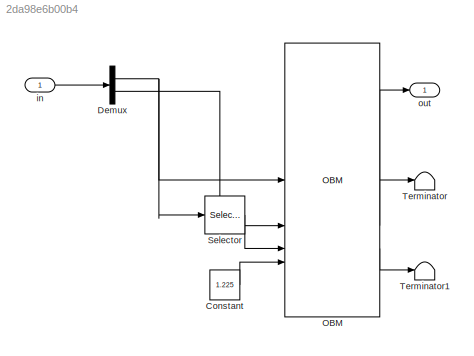
MODEL slx_2da98e6b00b4
KIND model
CONFIG AbsTol = auto
CONFIG EnableMultiTasking = off
CONFIG FixedStep = 1/500
CONFIG MaxStep = auto
CONFIG MinStep = auto
CONFIG RelTol = 1e-3
CONFIG SampleTimeConstraint = Unconstrained
CONFIG SolverName = ode1
CONFIG StartTime = 0.0
CONFIG StopTime = 1/500
BLOCK [Constant] Constant
  Value = 1.225
BLOCK [Demux] Demux
  Outputs = [12,20]
BLOCK [Reference] OBM  REF=unifier_obm/OBM  (lib defined in slx_b5c65437f254)
  SourceBlock = unifier_obm/OBM
BLOCK [Selector] Selector
  IndexOptions = Index vector (dialog)
  Indices = [4,5,6]
  InputPortWidth = 12
  OutputSizes = 1
BLOCK [Terminator] Terminator
BLOCK [Terminator] Terminator1
BLOCK [Inport] in
BLOCK [Outport] out
LINE Constant:1 -> OBM:4
NET Demux:1 -> OBM:1, Selector:1
LINE Demux:2 -> OBM:2
LINE OBM:1 -> out:1
LINE OBM:2 -> Terminator:1
LINE OBM:3 -> Terminator1:1
LINE Selector:1 -> OBM:3
LINE in:1 -> Demux:1
note: NET lines group one-source signal fan-out (src -> all destinations, sorted); 1:1 wires keep LINE
